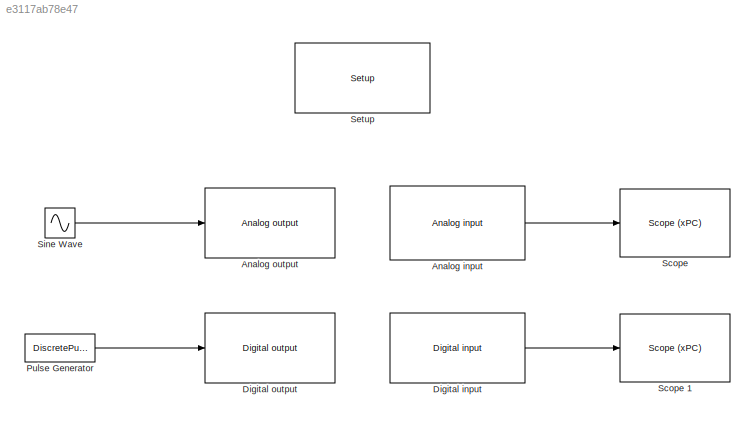
MODEL slx_e3117ab78e47
KIND model
BLOCK [Reference] Analog input  REF=speedgoatlib_IO102/Analog input
  Ports = [0, 1]
  SourceBlock = speedgoatlib_IO102/Analog input
  SourceType = ad_IO102
  adCoupling = 2
  channels = 1
  high_voltage = off
  id = 1
  pciSlot = -1
  range = 1
  ts = 100e-6
BLOCK [Reference] Analog output  REF=speedgoatlib_IO102/Analog output
  Ports = [1]
  SourceBlock = speedgoatlib_IO102/Analog output
  SourceType = da_IO102
  channels = 1
  id = 1
  pciSlot = -1
  range = 1
  ts = -1
BLOCK [Reference] Digital input  REF=speedgoatlib_IO102/Digital input
  Ports = [0, 1]
  SourceBlock = speedgoatlib_IO102/Digital input
  SourceType = di_IO102
  channels = 1
  id = 1
  pciSlot = -1
  ts = 100e-6
BLOCK [Reference] Digital output  REF=speedgoatlib_IO102/Digital output
  Ports = [1]
  SourceBlock = speedgoatlib_IO102/Digital output
  SourceType = do_IO102
  channels = 1
  id = 1
  pciSlot = -1
  ts = -1
BLOCK [DiscretePulseGenerator] Pulse Generator
  Period = 100
  Ports = [0, 1]
  PulseWidth = 50
  SampleTime = 100e-6
BLOCK [Reference] Scope   REF=xpclib/Misc./Scope (xPC) 
  Ports = [1]
  SourceBlock = xpclib/Misc./Scope (xPC)
  SourceType = xpcscopeblock
  autorestart = off
  autostart = on
  dynamicfilemode = off
  filename = data.dat
  formatstr = '%15.6f'
  grid = on
  interleave = 1
  maxwritefilesize = 512*1024^2
  mode = Lazy
  noprepostsamples = 0
  nosamples = 250
  scopeno = 1
  scopetype = Target
  triggerlevel = 0.0
  triggermode = FreeRun
  triggersample = 0
  triggerscope = 1
  triggersignal = 1
  triggerslope = Either
  trigsignalfromport = off
  viewmode = Graphical redraw
  writesize = 512
  ylimits = [0,0]
BLOCK [Reference] Scope 1  REF=xpclib/Misc./Scope (xPC) 
  Ports = [1]
  SourceBlock = xpclib/Misc./Scope (xPC)
  SourceType = xpcscopeblock
  autorestart = off
  autostart = on
  dynamicfilemode = off
  filename = data.dat
  formatstr = '%15.6f'
  grid = on
  interleave = 1
  maxwritefilesize = 512*1024^2
  mode = Lazy
  noprepostsamples = 0
  nosamples = 250
  scopeno = 2
  scopetype = Target
  triggerlevel = 0.0
  triggermode = FreeRun
  triggersample = 0
  triggerscope = 1
  triggersignal = 1
  triggerslope = Either
  trigsignalfromport = off
  viewmode = Graphical redraw
  writesize = 512
  ylimits = [0,0]
BLOCK [Reference] Setup  REF=speedgoatlib_IO102/Setup
  Ports = []
  SourceBlock = speedgoatlib_IO102/Setup
  SourceType = setup_IO102
  adChannel = 1
  adChannelMode = Single-channel (enter channel number below)
  adCoupling = Single-ended
  cal = on
  daChannel = [1]
  daInitValue = [0]
  daReset = [1]
  diChannel = [1]
  doChannel = [1]
  doInitValue = [0]
  doReset = [1]
  group = Module setup
  id = 1
  pciSlot = -1
  range = +-10V
BLOCK [Sin] Sine Wave
  Amplitude = 10
  Frequency = 2*pi*500
  Ports = [0, 1]
  SampleTime = 100e-6
LINE Analog input:1 -> Scope :1
LINE Digital input:1 -> Scope 1:1
LINE Pulse Generator:1 -> Digital output:1
LINE Sine Wave:1 -> Analog output:1
